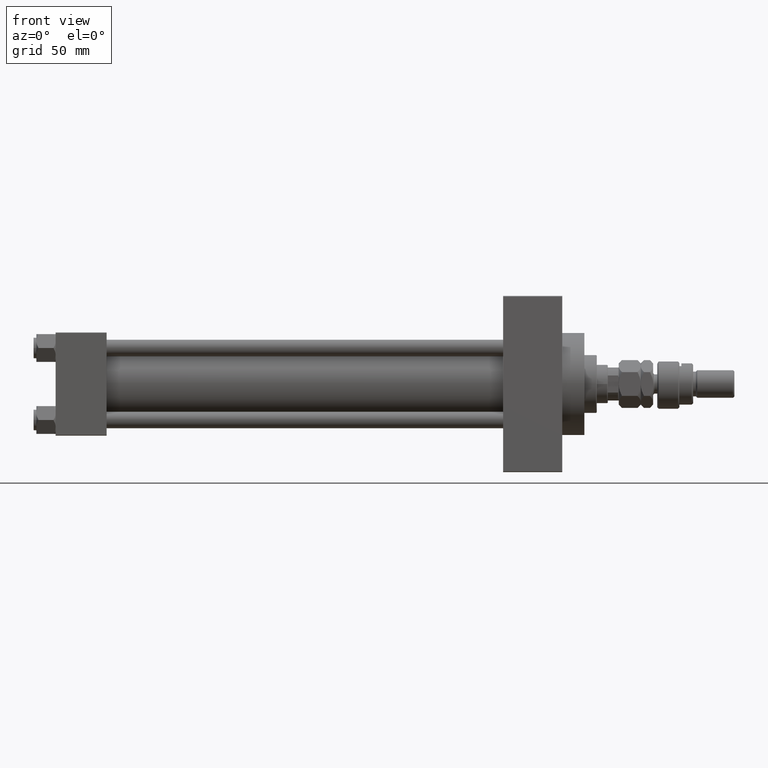
[diagram: clean part render]
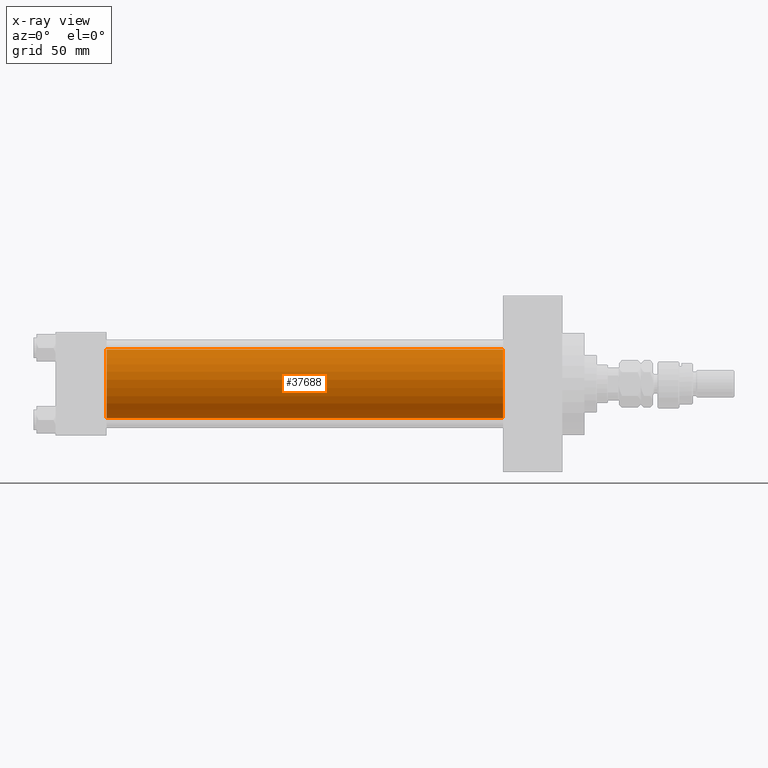
[diagram: x-ray — body ghosted, one internal face saturated and labeled with its STEP entity id]
A machine part, front view, then the same camera in x-ray: the body is ghosted and one INTERNAL B-rep face — a face not visible from any outside direction — is saturated and labeled: STEP entity #37688.
In plain terms, the highlighted cylindrical surface (edge-blend (fillet) strip) has radius 25 mm, axis along (-1, -0, -0).
Its self-contained STEP definition (entity closure, byte-faithful):
#4242 = DIRECTION ( 'NONE',  ( 0.000000000000000000, 0.000000000000000000, -1.000000000000000000 ) ) ;
#6669 = EDGE_CURVE ( 'NONE', #17321, #24036, #29879, .T. ) ;
#7117 = AXIS2_PLACEMENT_3D ( 'NONE', #24300, #19806, #4242 ) ;
#7144 = CARTESIAN_POINT ( 'NONE',  ( 324.9999999999999432, -2.602085213965210642E-15, 0.000000000000000000 ) ) ;
#8654 = VERTEX_POINT ( 'NONE', #47912 ) ;
#8899 = AXIS2_PLACEMENT_3D ( 'NONE', #7144, #26680, #23239 ) ;
#10106 = ORIENTED_EDGE ( 'NONE', *, *, #29981, .F. ) ;
#10422 = CARTESIAN_POINT ( 'NONE',  ( 324.9999999999999432, -2.602085213965210642E-15, 25.00000000000000000 ) ) ;
#13240 = CARTESIAN_POINT ( 'NONE',  ( 324.9999999999999432, -2.602085213965210642E-15, 25.00000000000000000 ) ) ;
#13266 = VECTOR ( 'NONE', #26521, 1000.000000000000000 ) ;
#13690 = CARTESIAN_POINT ( 'NONE',  ( 324.9999999999999432, 4.595317839031724996E-16, -25.00000000000000000 ) ) ;
#15412 = VERTEX_POINT ( 'NONE', #41891 ) ;
#15778 = EDGE_CURVE ( 'NONE', #17321, #8654, #46522, .T. ) ;
#16675 = ORIENTED_EDGE ( 'NONE', *, *, #6669, .T. ) ;
#17321 = VERTEX_POINT ( 'NONE', #13240 ) ;
#18157 = LINE ( 'NONE', #13690, #36214 ) ;
#19674 = CARTESIAN_POINT ( 'NONE',  ( 324.9999999999999432, 4.595317839031724996E-16, -25.00000000000000000 ) ) ;
#19806 = DIRECTION ( 'NONE',  ( 1.000000000000000000, 0.000000000000000000, 0.000000000000000000 ) ) ;
#20273 = CARTESIAN_POINT ( 'NONE',  ( 37.00000000000000000, -2.602085213965210642E-15, 0.000000000000000000 ) ) ;
#22449 = FACE_OUTER_BOUND ( 'NONE', #25665, .T. ) ;
#23239 = DIRECTION ( 'NONE',  ( 0.000000000000000000, 0.000000000000000000, 1.000000000000000000 ) ) ;
#24036 = VERTEX_POINT ( 'NONE', #19674 ) ;
#24300 = CARTESIAN_POINT ( 'NONE',  ( 324.9999999999999432, -2.602085213965210642E-15, 0.000000000000000000 ) ) ;
#25665 = EDGE_LOOP ( 'NONE', ( #16675, #49651, #10106, #42694 ) ) ;
#26521 = DIRECTION ( 'NONE',  ( -1.000000000000000000, -0.000000000000000000, -0.000000000000000000 ) ) ;
#26680 = DIRECTION ( 'NONE',  ( -1.000000000000000000, -0.000000000000000000, -0.000000000000000000 ) ) ;
#29879 = CIRCLE ( 'NONE', #7117, 25.00000000000000000 ) ;
#29981 = EDGE_CURVE ( 'NONE', #8654, #15412, #40506, .T. ) ;
#33996 = DIRECTION ( 'NONE',  ( -1.000000000000000000, -0.000000000000000000, -0.000000000000000000 ) ) ;
#34592 = AXIS2_PLACEMENT_3D ( 'NONE', #20273, #35832, #36362 ) ;
#35832 = DIRECTION ( 'NONE',  ( 1.000000000000000000, 0.000000000000000000, 0.000000000000000000 ) ) ;
#36214 = VECTOR ( 'NONE', #33996, 1000.000000000000000 ) ;
#36362 = DIRECTION ( 'NONE',  ( 0.000000000000000000, 0.000000000000000000, -1.000000000000000000 ) ) ;
#37688 = ADVANCED_FACE ( 'NONE', ( #22449 ), #42994, .F. ) ;
#40506 = CIRCLE ( 'NONE', #34592, 25.00000000000000000 ) ;
#41891 = CARTESIAN_POINT ( 'NONE',  ( 37.00000000000000000, 4.595317839031724996E-16, -25.00000000000000000 ) ) ;
#42694 = ORIENTED_EDGE ( 'NONE', *, *, #15778, .F. ) ;
#42994 = CYLINDRICAL_SURFACE ( 'NONE', #8899, 25.00000000000000000 ) ;
#46522 = LINE ( 'NONE', #10422, #13266 ) ;
#47912 = CARTESIAN_POINT ( 'NONE',  ( 37.00000000000000000, -2.602085213965210642E-15, 25.00000000000000000 ) ) ;
#49473 = EDGE_CURVE ( 'NONE', #24036, #15412, #18157, .T. ) ;
#49651 = ORIENTED_EDGE ( 'NONE', *, *, #49473, .T. ) ;